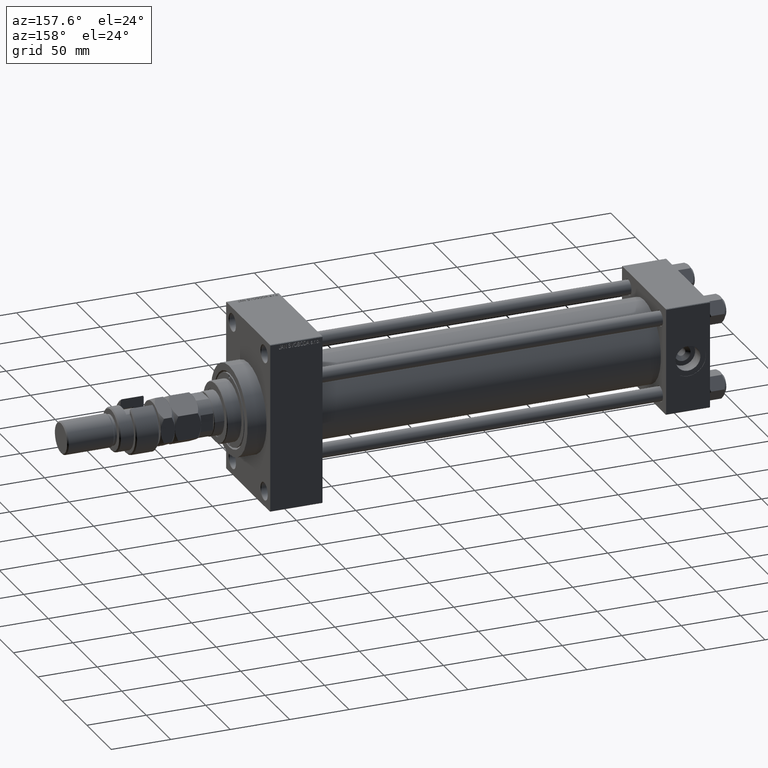
[diagram: clean part render]
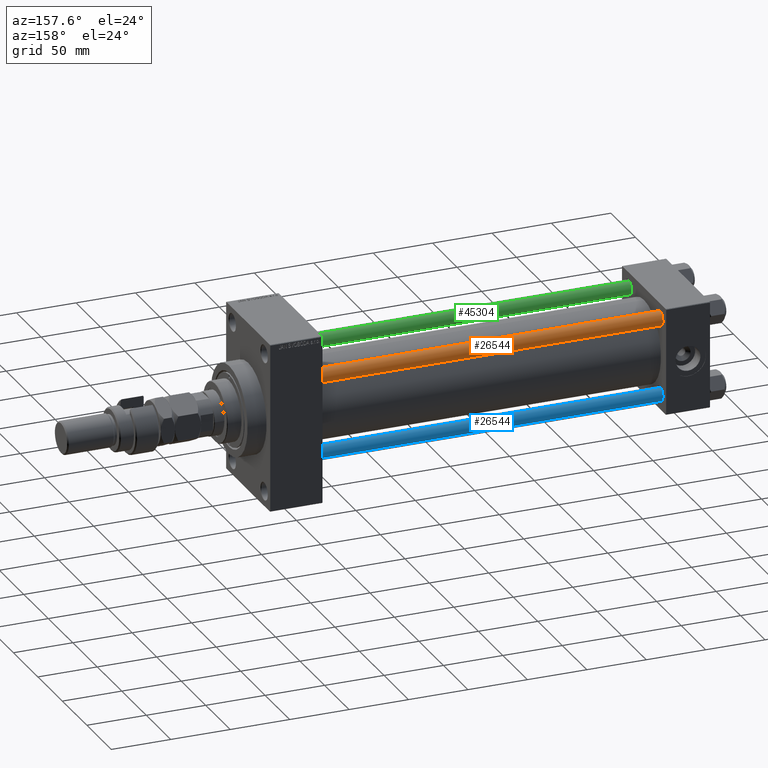
[diagram: same view with three faces highlighted in distinct colors, each labeled with its STEP entity id]
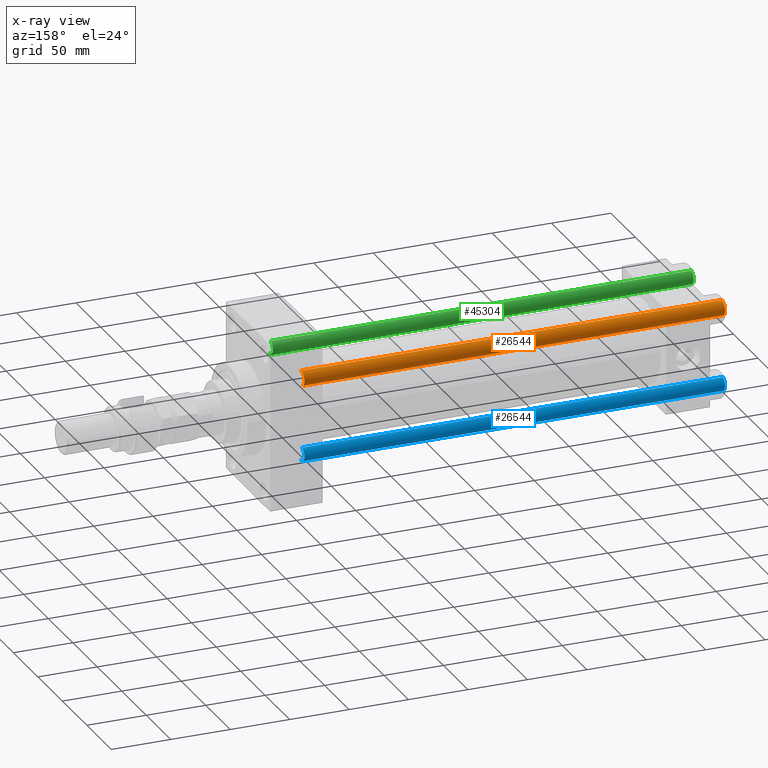
[diagram: x-ray of the same camera — body ghosted, the three highlighted faces saturated]
A machine part, auxiliary view with three faces highlighted in distinct colors.
The next image is the same camera in x-ray (body ghosted, the three faces saturated) — at least one of them is partly hidden behind the body in this view.
Their STEP definitions:

[orange] entity #26544 — the highlighted cylindrical surface (edge-blend (fillet) strip) has radius 6 mm, axis along (-1, -0, 0).
#166 = DIRECTION ( 'NONE',  ( -0.000000000000000000, -0.000000000000000000, -1.000000000000000000 ) ) ;
#908 = VERTEX_POINT ( 'NONE', #15635 ) ;
#3006 = DIRECTION ( 'NONE',  ( -0.000000000000000000, -0.000000000000000000, -1.000000000000000000 ) ) ;
#5718 = EDGE_LOOP ( 'NONE', ( #37833, #17552, #44954, #49435 ) ) ;
#6307 = DIRECTION ( 'NONE',  ( 1.000000000000000000, 0.000000000000000000, 0.000000000000000000 ) ) ;
#7069 = DIRECTION ( 'NONE',  ( 0.000000000000000000, 0.000000000000000000, -1.000000000000000000 ) ) ;
#10632 = FACE_OUTER_BOUND ( 'NONE', #5718, .T. ) ;
#11873 = VERTEX_POINT ( 'NONE', #16683 ) ;
#11923 = AXIS2_PLACEMENT_3D ( 'NONE', #37345, #38116, #18798 ) ;
#15635 = CARTESIAN_POINT ( 'NONE',  ( 6.000000000000000888, 7.347880794884120722E-16, 0.5000000000001114664 ) ) ;
#16683 = CARTESIAN_POINT ( 'NONE',  ( -6.000000000000000888, 0.000000000000000000, 354.5000000000000000 ) ) ;
#16690 = VERTEX_POINT ( 'NONE', #32033 ) ;
#17552 = ORIENTED_EDGE ( 'NONE', *, *, #43992, .T. ) ;
#18798 = DIRECTION ( 'NONE',  ( -1.000000000000000000, 0.000000000000000000, 0.000000000000000000 ) ) ;
#18903 = VECTOR ( 'NONE', #3006, 1000.000000000000000 ) ;
#19781 = CARTESIAN_POINT ( 'NONE',  ( 6.000000000000000888, 7.347880794884120722E-16, 355.0000000000000000 ) ) ;
#20542 = CIRCLE ( 'NONE', #41647, 6.000000000000000888 ) ;
#22109 = CARTESIAN_POINT ( 'NONE',  ( 0.000000000000000000, 0.000000000000000000, 354.5000000000000000 ) ) ;
#22813 = VERTEX_POINT ( 'NONE', #30517 ) ;
#26432 = CARTESIAN_POINT ( 'NONE',  ( -6.000000000000000888, 0.000000000000000000, 355.0000000000000000 ) ) ;
#26544 = ADVANCED_FACE ( 'NONE', ( #10632 ), #45488, .T. ) ;
#27041 = EDGE_CURVE ( 'NONE', #908, #16690, #36278, .T. ) ;
#30517 = CARTESIAN_POINT ( 'NONE',  ( 6.000000000000000888, 7.347880794884120722E-16, 354.5000000000000000 ) ) ;
#31683 = DIRECTION ( 'NONE',  ( 1.000000000000000000, 0.000000000000000000, 0.000000000000000000 ) ) ;
#31952 = VECTOR ( 'NONE', #166, 1000.000000000000000 ) ;
#32033 = CARTESIAN_POINT ( 'NONE',  ( -6.000000000000000888, 0.000000000000000000, 0.5000000000001114664 ) ) ;
#34999 = CARTESIAN_POINT ( 'NONE',  ( 0.000000000000000000, 0.000000000000000000, 0.5000000000001114664 ) ) ;
#35251 = DIRECTION ( 'NONE',  ( -0.000000000000000000, -0.000000000000000000, 1.000000000000000000 ) ) ;
#36278 = CIRCLE ( 'NONE', #42789, 6.000000000000000888 ) ;
#37345 = CARTESIAN_POINT ( 'NONE',  ( 0.000000000000000000, 0.000000000000000000, 355.0000000000000000 ) ) ;
#37346 = LINE ( 'NONE', #26432, #18903 ) ;
#37833 = ORIENTED_EDGE ( 'NONE', *, *, #42714, .T. ) ;
#38116 = DIRECTION ( 'NONE',  ( -0.000000000000000000, -0.000000000000000000, -1.000000000000000000 ) ) ;
#41647 = AXIS2_PLACEMENT_3D ( 'NONE', #22109, #7069, #6307 ) ;
#42382 = LINE ( 'NONE', #19781, #31952 ) ;
#42612 = EDGE_CURVE ( 'NONE', #11873, #16690, #37346, .T. ) ;
#42714 = EDGE_CURVE ( 'NONE', #11873, #22813, #20542, .T. ) ;
#42789 = AXIS2_PLACEMENT_3D ( 'NONE', #34999, #35251, #31683 ) ;
#43992 = EDGE_CURVE ( 'NONE', #22813, #908, #42382, .T. ) ;
#44954 = ORIENTED_EDGE ( 'NONE', *, *, #27041, .T. ) ;
#45488 = CYLINDRICAL_SURFACE ( 'NONE', #11923, 6.000000000000000888 ) ;
#49435 = ORIENTED_EDGE ( 'NONE', *, *, #42612, .F. ) ;

[blue] entity #26544 — the highlighted cylindrical surface (edge-blend (fillet) strip) has radius 6 mm, axis along (1, -0, 0).
#166 = DIRECTION ( 'NONE',  ( -0.000000000000000000, -0.000000000000000000, -1.000000000000000000 ) ) ;
#908 = VERTEX_POINT ( 'NONE', #15635 ) ;
#3006 = DIRECTION ( 'NONE',  ( -0.000000000000000000, -0.000000000000000000, -1.000000000000000000 ) ) ;
#5718 = EDGE_LOOP ( 'NONE', ( #37833, #17552, #44954, #49435 ) ) ;
#6307 = DIRECTION ( 'NONE',  ( 1.000000000000000000, 0.000000000000000000, 0.000000000000000000 ) ) ;
#7069 = DIRECTION ( 'NONE',  ( 0.000000000000000000, 0.000000000000000000, -1.000000000000000000 ) ) ;
#10632 = FACE_OUTER_BOUND ( 'NONE', #5718, .T. ) ;
#11873 = VERTEX_POINT ( 'NONE', #16683 ) ;
#11923 = AXIS2_PLACEMENT_3D ( 'NONE', #37345, #38116, #18798 ) ;
#15635 = CARTESIAN_POINT ( 'NONE',  ( 6.000000000000000888, 7.347880794884120722E-16, 0.5000000000001114664 ) ) ;
#16683 = CARTESIAN_POINT ( 'NONE',  ( -6.000000000000000888, 0.000000000000000000, 354.5000000000000000 ) ) ;
#16690 = VERTEX_POINT ( 'NONE', #32033 ) ;
#17552 = ORIENTED_EDGE ( 'NONE', *, *, #43992, .T. ) ;
#18798 = DIRECTION ( 'NONE',  ( -1.000000000000000000, 0.000000000000000000, 0.000000000000000000 ) ) ;
#18903 = VECTOR ( 'NONE', #3006, 1000.000000000000000 ) ;
#19781 = CARTESIAN_POINT ( 'NONE',  ( 6.000000000000000888, 7.347880794884120722E-16, 355.0000000000000000 ) ) ;
#20542 = CIRCLE ( 'NONE', #41647, 6.000000000000000888 ) ;
#22109 = CARTESIAN_POINT ( 'NONE',  ( 0.000000000000000000, 0.000000000000000000, 354.5000000000000000 ) ) ;
#22813 = VERTEX_POINT ( 'NONE', #30517 ) ;
#26432 = CARTESIAN_POINT ( 'NONE',  ( -6.000000000000000888, 0.000000000000000000, 355.0000000000000000 ) ) ;
#26544 = ADVANCED_FACE ( 'NONE', ( #10632 ), #45488, .T. ) ;
#27041 = EDGE_CURVE ( 'NONE', #908, #16690, #36278, .T. ) ;
#30517 = CARTESIAN_POINT ( 'NONE',  ( 6.000000000000000888, 7.347880794884120722E-16, 354.5000000000000000 ) ) ;
#31683 = DIRECTION ( 'NONE',  ( 1.000000000000000000, 0.000000000000000000, 0.000000000000000000 ) ) ;
#31952 = VECTOR ( 'NONE', #166, 1000.000000000000000 ) ;
#32033 = CARTESIAN_POINT ( 'NONE',  ( -6.000000000000000888, 0.000000000000000000, 0.5000000000001114664 ) ) ;
#34999 = CARTESIAN_POINT ( 'NONE',  ( 0.000000000000000000, 0.000000000000000000, 0.5000000000001114664 ) ) ;
#35251 = DIRECTION ( 'NONE',  ( -0.000000000000000000, -0.000000000000000000, 1.000000000000000000 ) ) ;
#36278 = CIRCLE ( 'NONE', #42789, 6.000000000000000888 ) ;
#37345 = CARTESIAN_POINT ( 'NONE',  ( 0.000000000000000000, 0.000000000000000000, 355.0000000000000000 ) ) ;
#37346 = LINE ( 'NONE', #26432, #18903 ) ;
#37833 = ORIENTED_EDGE ( 'NONE', *, *, #42714, .T. ) ;
#38116 = DIRECTION ( 'NONE',  ( -0.000000000000000000, -0.000000000000000000, -1.000000000000000000 ) ) ;
#41647 = AXIS2_PLACEMENT_3D ( 'NONE', #22109, #7069, #6307 ) ;
#42382 = LINE ( 'NONE', #19781, #31952 ) ;
#42612 = EDGE_CURVE ( 'NONE', #11873, #16690, #37346, .T. ) ;
#42714 = EDGE_CURVE ( 'NONE', #11873, #22813, #20542, .T. ) ;
#42789 = AXIS2_PLACEMENT_3D ( 'NONE', #34999, #35251, #31683 ) ;
#43992 = EDGE_CURVE ( 'NONE', #22813, #908, #42382, .T. ) ;
#44954 = ORIENTED_EDGE ( 'NONE', *, *, #27041, .T. ) ;
#45488 = CYLINDRICAL_SURFACE ( 'NONE', #11923, 6.000000000000000888 ) ;
#49435 = ORIENTED_EDGE ( 'NONE', *, *, #42612, .F. ) ;

[green] entity #45304 — the highlighted cylindrical surface (edge-blend (fillet) strip) has radius 6 mm, axis along (1, 0, 0).
#166 = DIRECTION ( 'NONE',  ( -0.000000000000000000, -0.000000000000000000, -1.000000000000000000 ) ) ;
#571 = EDGE_CURVE ( 'NONE', #22813, #11873, #14812, .T. ) ;
#908 = VERTEX_POINT ( 'NONE', #15635 ) ;
#3006 = DIRECTION ( 'NONE',  ( -0.000000000000000000, -0.000000000000000000, -1.000000000000000000 ) ) ;
#5155 = FACE_OUTER_BOUND ( 'NONE', #46105, .T. ) ;
#5781 = ORIENTED_EDGE ( 'NONE', *, *, #25400, .T. ) ;
#11873 = VERTEX_POINT ( 'NONE', #16683 ) ;
#12543 = DIRECTION ( 'NONE',  ( -1.000000000000000000, 0.000000000000000000, 0.000000000000000000 ) ) ;
#14812 = CIRCLE ( 'NONE', #33456, 6.000000000000000888 ) ;
#15623 = CARTESIAN_POINT ( 'NONE',  ( 0.000000000000000000, 0.000000000000000000, 355.0000000000000000 ) ) ;
#15635 = CARTESIAN_POINT ( 'NONE',  ( 6.000000000000000888, 7.347880794884120722E-16, 0.5000000000001114664 ) ) ;
#16052 = CIRCLE ( 'NONE', #17665, 6.000000000000000888 ) ;
#16683 = CARTESIAN_POINT ( 'NONE',  ( -6.000000000000000888, 0.000000000000000000, 354.5000000000000000 ) ) ;
#16690 = VERTEX_POINT ( 'NONE', #32033 ) ;
#17665 = AXIS2_PLACEMENT_3D ( 'NONE', #21408, #40712, #25218 ) ;
#18900 = AXIS2_PLACEMENT_3D ( 'NONE', #15623, #31133, #12543 ) ;
#18903 = VECTOR ( 'NONE', #3006, 1000.000000000000000 ) ;
#19781 = CARTESIAN_POINT ( 'NONE',  ( 6.000000000000000888, 7.347880794884120722E-16, 355.0000000000000000 ) ) ;
#21408 = CARTESIAN_POINT ( 'NONE',  ( 0.000000000000000000, 0.000000000000000000, 0.5000000000001114664 ) ) ;
#22813 = VERTEX_POINT ( 'NONE', #30517 ) ;
#23368 = ORIENTED_EDGE ( 'NONE', *, *, #571, .T. ) ;
#25218 = DIRECTION ( 'NONE',  ( 1.000000000000000000, 0.000000000000000000, 0.000000000000000000 ) ) ;
#25400 = EDGE_CURVE ( 'NONE', #16690, #908, #16052, .T. ) ;
#25882 = CARTESIAN_POINT ( 'NONE',  ( 0.000000000000000000, 0.000000000000000000, 354.5000000000000000 ) ) ;
#26101 = ORIENTED_EDGE ( 'NONE', *, *, #42612, .T. ) ;
#26432 = CARTESIAN_POINT ( 'NONE',  ( -6.000000000000000888, 0.000000000000000000, 355.0000000000000000 ) ) ;
#29190 = DIRECTION ( 'NONE',  ( 0.000000000000000000, 0.000000000000000000, -1.000000000000000000 ) ) ;
#30358 = ORIENTED_EDGE ( 'NONE', *, *, #43992, .F. ) ;
#30517 = CARTESIAN_POINT ( 'NONE',  ( 6.000000000000000888, 7.347880794884120722E-16, 354.5000000000000000 ) ) ;
#31133 = DIRECTION ( 'NONE',  ( -0.000000000000000000, -0.000000000000000000, -1.000000000000000000 ) ) ;
#31952 = VECTOR ( 'NONE', #166, 1000.000000000000000 ) ;
#32033 = CARTESIAN_POINT ( 'NONE',  ( -6.000000000000000888, 0.000000000000000000, 0.5000000000001114664 ) ) ;
#33456 = AXIS2_PLACEMENT_3D ( 'NONE', #25882, #29190, #40633 ) ;
#37346 = LINE ( 'NONE', #26432, #18903 ) ;
#40633 = DIRECTION ( 'NONE',  ( 1.000000000000000000, 0.000000000000000000, 0.000000000000000000 ) ) ;
#40712 = DIRECTION ( 'NONE',  ( -0.000000000000000000, -0.000000000000000000, 1.000000000000000000 ) ) ;
#42382 = LINE ( 'NONE', #19781, #31952 ) ;
#42612 = EDGE_CURVE ( 'NONE', #11873, #16690, #37346, .T. ) ;
#43822 = CYLINDRICAL_SURFACE ( 'NONE', #18900, 6.000000000000000888 ) ;
#43992 = EDGE_CURVE ( 'NONE', #22813, #908, #42382, .T. ) ;
#45304 = ADVANCED_FACE ( 'NONE', ( #5155 ), #43822, .T. ) ;
#46105 = EDGE_LOOP ( 'NONE', ( #30358, #23368, #26101, #5781 ) ) ;